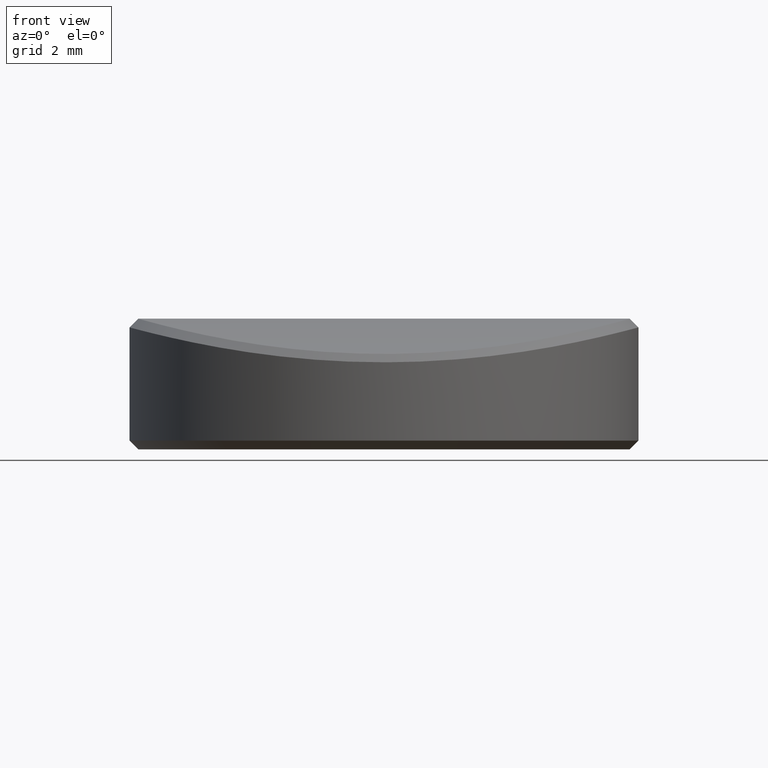
[diagram: clean part render]
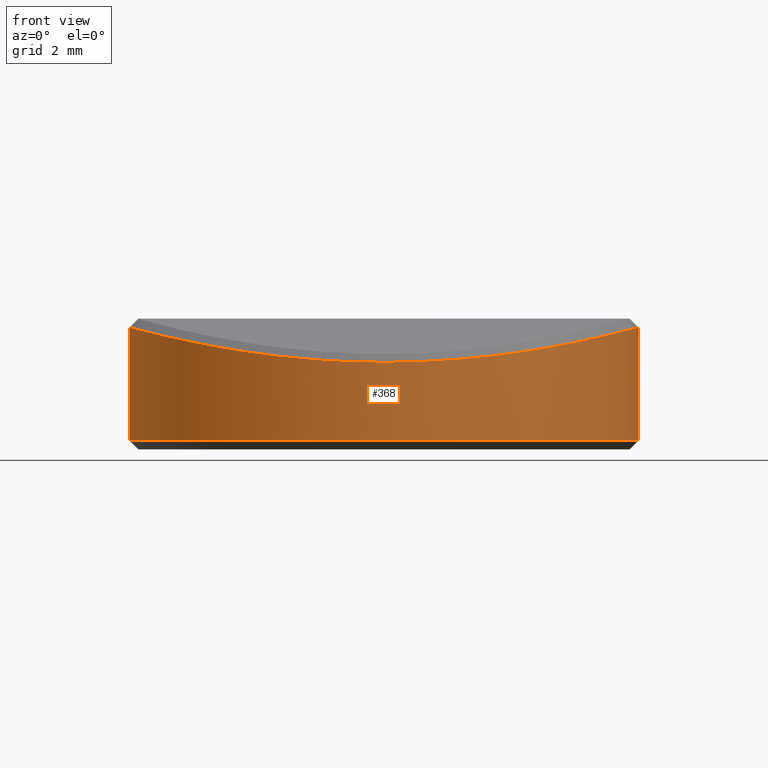
[diagram: same view with one face highlighted and labeled with its STEP entity id]
A machine part, front view. The second image highlights one B-rep face of the part: STEP entity #368.
In plain terms, the highlighted cylindrical surface (partial cylindrical patch) has radius 5.85 mm, axis along (-0, -0, -1).
Its self-contained STEP definition (entity closure, byte-faithful):
#9 = CARTESIAN_POINT ( 'NONE',  ( -3.108782850423519317, -4.956034727287149444, 2.230347185683114297 ) ) ;
#20 = CARTESIAN_POINT ( 'NONE',  ( -2.545663645051468027, -5.267292352795366561, 2.154873167774259635 ) ) ;
#23 = CARTESIAN_POINT ( 'NONE',  ( 4.723827799674229944, -3.450811663852322742, 2.527553060469594826 ) ) ;
#31 = CARTESIAN_POINT ( 'NONE',  ( -3.450554436345118159, -4.724016065476885018, 2.283396165273964940 ) ) ;
#33 = CARTESIAN_POINT ( 'NONE',  ( 5.754296932867942083, -1.054953600780712764, 2.777727176133279130 ) ) ;
#42 = CARTESIAN_POINT ( 'NONE',  ( -2.719600324991664930, -5.179423407595630025, 2.176656040645689405 ) ) ;
#45 = DIRECTION ( 'NONE',  ( -0.000000000000000000, -0.000000000000000000, -1.000000000000000000 ) ) ;
#54 = CARTESIAN_POINT ( 'NONE',  ( -3.925887252096214919, -4.337040503479961728, 2.365983545811698008 ) ) ;
#56 = CARTESIAN_POINT ( 'NONE',  ( 4.873037139303923126, -3.236690694926827927, 2.560910845699890359 ) ) ;
#57 = VECTOR ( 'NONE', #1112, 1000.000000000000000 ) ;
#67 = CARTESIAN_POINT ( 'NONE',  ( -5.392229212770919489, -2.268694357407081252, 2.684581383192929493 ) ) ;
#69 = CARTESIAN_POINT ( 'NONE',  ( 3.928645088535603236, -4.334541482554770120, 2.366492919366732117 ) ) ;
#78 = CARTESIAN_POINT ( 'NONE',  ( -5.718105006849672378, -1.238987986365718497, 2.768158322756777423 ) ) ;
#80 = CARTESIAN_POINT ( 'NONE',  ( 3.717813260694169397, -4.516679385691503512, 2.328564999075163122 ) ) ;
#90 = CARTESIAN_POINT ( 'NONE',  ( -5.135289014846268429, -2.802041077839218186, 2.621910768708905604 ) ) ;
#93 = CARTESIAN_POINT ( 'NONE',  ( 3.929106338797974995, -4.334124442365796526, 2.366577973504545795 ) ) ;
#103 = CARTESIAN_POINT ( 'NONE',  ( -5.146066280833688111, -2.782198645166380491, 2.624482193157535725 ) ) ;
#106 = CARTESIAN_POINT ( 'NONE',  ( 3.951386867900394950, -4.313828606339571436, 2.370705502691183408 ) ) ;
#112 = CARTESIAN_POINT ( 'NONE',  ( 5.849999999690336239, 1.250562986818305011E-13, 2.803286061411143670 ) ) ;
#115 = CARTESIAN_POINT ( 'NONE',  ( -4.507164106209422982, -3.729343330913357679, 2.480869325298382666 ) ) ;
#118 = CARTESIAN_POINT ( 'NONE',  ( 2.802417494788577823, -5.135083445294739590, 2.187506342453837238 ) ) ;
#125 = CARTESIAN_POINT ( 'NONE',  ( -5.755866007621095903, -1.049677379974378599, 2.778137771751524543 ) ) ;
#128 = CARTESIAN_POINT ( 'NONE',  ( 0.1883382758270276125, -5.850083910705085266, 2.000323871824096322 ) ) ;
#135 = CYLINDRICAL_SURFACE ( 'NONE', #862, 5.849999999999999645 ) ;
#179 = CARTESIAN_POINT ( 'NONE',  ( -3.526041746483487227, -4.668134007661689289, 2.295795990562802036 ) ) ;
#191 = CARTESIAN_POINT ( 'NONE',  ( -4.131726955247751576, -4.141423216994865264, 2.404929291311185935 ) ) ;
#193 = CARTESIAN_POINT ( 'NONE',  ( 5.066229355240967180, -2.926594406666112924, 2.605499175508384724 ) ) ;
#201 = CARTESIAN_POINT ( 'NONE',  ( -3.246887011883881513, -4.866246377772907472, 2.251174354118650633 ) ) ;
#211 = CARTESIAN_POINT ( 'NONE',  ( -2.686837148768024264, -5.196582156251404960, 2.172435946782888649 ) ) ;
#214 = CARTESIAN_POINT ( 'NONE',  ( 4.709326676162461922, -3.470575237268160862, 2.524363625867479755 ) ) ;
#215 = ORIENTED_EDGE ( 'NONE', *, *, #696, .T. ) ;
#223 = CARTESIAN_POINT ( 'NONE',  ( -3.913582356756851954, -4.348154723557182244, 2.363715322648005657 ) ) ;
#236 = CARTESIAN_POINT ( 'NONE',  ( -5.625266206309622596, -1.608843856409147399, 2.743873354517891272 ) ) ;
#239 = CARTESIAN_POINT ( 'NONE',  ( 4.745373247135765915, -3.421252046089266141, 2.532302280145746654 ) ) ;
#250 = CARTESIAN_POINT ( 'NONE',  ( 2.587057823179834681, -5.247748817499090279, 2.159787033227829500 ) ) ;
#261 = CARTESIAN_POINT ( 'NONE',  ( -4.401974534009122308, -3.853233005442497916, 2.458934406281215068 ) ) ;
#264 = CARTESIAN_POINT ( 'NONE',  ( 1.748415650869923343, -5.582822403530843580, 2.073360415807437906 ) ) ;
#274 = CARTESIAN_POINT ( 'NONE',  ( -4.851183327824674762, -3.269348508849334589, 2.555964011797020152 ) ) ;
#277 = CARTESIAN_POINT ( 'NONE',  ( 3.520711409013822735, -4.671960799779293794, 2.294937052677591183 ) ) ;
#286 = CARTESIAN_POINT ( 'NONE',  ( 3.168029712081033455, -4.918978468781044278, 2.239049897273139411 ) ) ;
#297 = CARTESIAN_POINT ( 'NONE',  ( 4.141705436161885245, -4.131448007787318133, 2.406865483849802700 ) ) ;
#306 = CARTESIAN_POINT ( 'NONE',  ( -0.6709341673489426228, -5.812172426493603439, 2.010909900656082883 ) ) ;
#328 = CARTESIAN_POINT ( 'NONE',  ( 5.849999970380407532, -0.0005886843151336670086, 2.803286054134136673 ) ) ;
#334 = CARTESIAN_POINT ( 'NONE',  ( -5.840532251854942736, -0.3847275646348179978, 2.800733105749589225 ) ) ;
#337 = CARTESIAN_POINT ( 'NONE',  ( 1.330873921045456543, -5.696798337782177590, 2.042665667443217536 ) ) ;
#352 = CARTESIAN_POINT ( 'NONE',  ( -0.9553637536794151730, -5.772259391865455669, 2.021977727394348445 ) ) ;
#363 = CARTESIAN_POINT ( 'NONE',  ( -4.123828730477953286, -4.149291052719297213, 2.403399490450074172 ) ) ;
#365 = CARTESIAN_POINT ( 'NONE',  ( 4.992499815448160128, -3.049545747813721785, 2.588307514210658411 ) ) ;
#368 = ADVANCED_FACE ( 'NONE', ( #2232 ), #135, .T. ) ;
#375 = CARTESIAN_POINT ( 'NONE',  ( 4.626183113562380989, -3.581187448371940363, 2.506222704104300369 ) ) ;
#386 = CARTESIAN_POINT ( 'NONE',  ( 5.410458597736353958, -2.224853044491496235, 2.689136660448355975 ) ) ;
#394 = CARTESIAN_POINT ( 'NONE',  ( -3.835304783193504097, -4.417408741672199213, 2.349446261839027716 ) ) ;
#396 = CARTESIAN_POINT ( 'NONE',  ( 4.668000088956494764, -3.526225386059664402, 2.515310402014607760 ) ) ;
#405 = CARTESIAN_POINT ( 'NONE',  ( -5.523515866622999759, -1.927587241727170664, 2.717700070206883645 ) ) ;
#408 = CARTESIAN_POINT ( 'NONE',  ( -5.849999999999999645, 0.000000000000000000, 6.000000000000000000 ) ) ;
#409 = VERTEX_POINT ( 'NONE', #2068 ) ;
#419 = CARTESIAN_POINT ( 'NONE',  ( 3.767888176357893304, -4.475084738857698419, 2.337379967339673126 ) ) ;
#425 = CARTESIAN_POINT ( 'NONE',  ( 5.849999995069331327, -0.0002942835053071968026, 2.803286060097897714 ) ) ;
#430 = CARTESIAN_POINT ( 'NONE',  ( 2.782705817194271347, -5.145791886599218046, 2.184894637057706479 ) ) ;
#439 = CARTESIAN_POINT ( 'NONE',  ( -4.215397123777505861, -4.056499576705031807, 2.421280389290585422 ) ) ;
#442 = CARTESIAN_POINT ( 'NONE',  ( 3.318472046064632863, -4.817797987164772699, 2.262270070581624104 ) ) ;
#449 = CARTESIAN_POINT ( 'NONE',  ( -5.365646248567822241, -2.330853210793601527, 2.677963900499593208 ) ) ;
#452 = CARTESIAN_POINT ( 'NONE',  ( 4.230524273277861624, -4.040511658897979252, 2.424292820571617213 ) ) ;
#463 = CARTESIAN_POINT ( 'NONE',  ( 4.170698614172545504, -4.102209374233271255, 2.412514241117049263 ) ) ;
#496 = CARTESIAN_POINT ( 'NONE',  ( 1.608883154003948990, -5.625250937251918160, 2.062027522259896717 ) ) ;
#506 = CARTESIAN_POINT ( 'NONE',  ( -0.4821109451466245033, -5.830872148210644035, 2.005698919982746631 ) ) ;
#526 = CARTESIAN_POINT ( 'NONE',  ( -3.580772384372483241, -4.626506958682261583, 2.304941799791994761 ) ) ;
#527 = CARTESIAN_POINT ( 'NONE',  ( 4.462856918700680353, -3.782547936313775949, 2.471557332582889011 ) ) ;
#536 = CARTESIAN_POINT ( 'NONE',  ( -2.331074964047352704, -5.366276372743954859, 2.129868160483276984 ) ) ;
#539 = CARTESIAN_POINT ( 'NONE',  ( 5.648914043461314982, -1.521381223205688693, 2.750033706340389017 ) ) ;
#550 = CARTESIAN_POINT ( 'NONE',  ( 5.849980663223728783, -0.1924519004817172585, 2.803281299603395116 ) ) ;
#559 = CARTESIAN_POINT ( 'NONE',  ( -2.753480425301402246, -5.161489221516933235, 2.181056120618038108 ) ) ;
#562 = CARTESIAN_POINT ( 'NONE',  ( 5.464986142956941073, -2.088186325386706343, 2.702835531236337907 ) ) ;
#572 = CARTESIAN_POINT ( 'NONE',  ( -3.182289788212739889, -4.908833012880132074, 2.241338763175429349 ) ) ;
#575 = VERTEX_POINT ( 'NONE', #1173 ) ;
#577 = LINE ( 'NONE', #1971, #57 ) ;
#581 = CARTESIAN_POINT ( 'NONE',  ( 5.849999980247618581, -0.0004906297894992470328, 2.803286056564010309 ) ) ;
#584 = CARTESIAN_POINT ( 'NONE',  ( -5.697698379113311340, -1.329634167561340341, 2.762784995634119944 ) ) ;
#587 = CARTESIAN_POINT ( 'NONE',  ( 2.832065877740156612, -5.118866719266185861, 2.191455161635542215 ) ) ;
#588 = EDGE_LOOP ( 'NONE', ( #1719, #215, #757, #1551, #1444 ) ) ;
#598 = CARTESIAN_POINT ( 'NONE',  ( -4.516843897697922827, -3.717615432673370801, 2.482910527837084658 ) ) ;
#601 = CARTESIAN_POINT ( 'NONE',  ( 3.262756936585985201, -4.855623287246449316, 2.253616069431632507 ) ) ;
#614 = CARTESIAN_POINT ( 'NONE',  ( 3.502717940038178046, -4.685466206555029878, 2.291955575945423096 ) ) ;
#623 = CARTESIAN_POINT ( 'NONE',  ( -4.264442010017353901, -4.004697213890091589, 2.431044420742443979 ) ) ;
#626 = CARTESIAN_POINT ( 'NONE',  ( 3.985749616642158433, -4.282157780973173011, 2.377110817988512981 ) ) ;
#635 = CARTESIAN_POINT ( 'NONE',  ( -4.311405481084928937, -3.954042083302847566, 2.440483853749306764 ) ) ;
#637 = CARTESIAN_POINT ( 'NONE',  ( 2.901799621491691017, -5.079935752348535338, 2.200887900672091835 ) ) ;
#664 = CARTESIAN_POINT ( 'NONE',  ( 1.051314444382481339, -5.755578168303820519, 2.026578894039628320 ) ) ;
#675 = CARTESIAN_POINT ( 'NONE',  ( 0.6725881811022945689, -5.812015075091156113, 2.010954348993247542 ) ) ;
#696 = EDGE_CURVE ( 'NONE', #575, #2074, #1742, .T. ) ;
#697 = CARTESIAN_POINT ( 'NONE',  ( -4.075196796774990915, -4.197082868610893414, 2.394043725910964149 ) ) ;
#699 = CARTESIAN_POINT ( 'NONE',  ( 4.794219617934716737, -3.352898638251528673, 2.543139267134282733 ) ) ;
#709 = CARTESIAN_POINT ( 'NONE',  ( 5.159837667453142984, -2.756574299140861939, 2.627775092831204251 ) ) ;
#720 = CARTESIAN_POINT ( 'NONE',  ( 5.771024310370168386, -0.9592386045870681111, 2.782165219909945808 ) ) ;
#729 = CARTESIAN_POINT ( 'NONE',  ( -3.213964614722030877, -4.888056069703377915, 2.246144947486201637 ) ) ;
#732 = CARTESIAN_POINT ( 'NONE',  ( 5.840355360950090002, -0.3865547633293929808, 2.800684777922156865 ) ) ;
#740 = CARTESIAN_POINT ( 'NONE',  ( -3.929909371101209192, -4.333395194116024030, 2.366726321089279939 ) ) ;
#743 = CARTESIAN_POINT ( 'NONE',  ( 4.535097732049801600, -3.695340623209366182, 2.486770112394149024 ) ) ;
#753 = CARTESIAN_POINT ( 'NONE',  ( -4.587836664488898819, -3.631162335127839480, 2.497909758033231675 ) ) ;
#756 = CARTESIAN_POINT ( 'NONE',  ( 3.738363006948426381, -4.499704974975393235, 2.332170820305339731 ) ) ;
#757 = ORIENTED_EDGE ( 'NONE', *, *, #1169, .T. ) ;
#766 = CARTESIAN_POINT ( 'NONE',  ( -4.287366684347072798, -3.980168403955294476, 2.435635814919612230 ) ) ;
#769 = CARTESIAN_POINT ( 'NONE',  ( 2.060728665083190414, -5.475861335615817893, 2.101582767041390021 ) ) ;
#779 = CARTESIAN_POINT ( 'NONE',  ( -4.856243827789320733, -3.261832886638504903, 2.557107594304171894 ) ) ;
#782 = CARTESIAN_POINT ( 'NONE',  ( 4.145504877088814766, -4.127631441792280143, 2.407604373877286097 ) ) ;
#792 = CARTESIAN_POINT ( 'NONE',  ( -5.247042623508423098, -2.588460887973440538, 2.648779003261308329 ) ) ;
#795 = CARTESIAN_POINT ( 'NONE',  ( 3.886739420570450410, -4.372487892644587149, 2.358757605636345289 ) ) ;
#804 = CARTESIAN_POINT ( 'NONE',  ( -5.474781948227675166, -2.063623762361217917, 2.705300481706175209 ) ) ;
#807 = CARTESIAN_POINT ( 'NONE',  ( 2.774113141161162588, -5.150432320729213309, 2.183761277853273786 ) ) ;
#813 = DIRECTION ( 'NONE',  ( -0.000000000000000000, -0.000000000000000000, 1.000000000000000000 ) ) ;
#815 = CARTESIAN_POINT ( 'NONE',  ( -1.684708547325874939, -5.602213537842637869, 2.068181486432794092 ) ) ;
#822 = CARTESIAN_POINT ( 'NONE',  ( -5.800448533297479337, -0.7657957513932394100, 2.789999254707520748 ) ) ;
#852 = CARTESIAN_POINT ( 'NONE',  ( 1.469557104900936828, -5.663816091009390874, 2.051638609363329202 ) ) ;
#862 = AXIS2_PLACEMENT_3D ( 'NONE', #1515, #1001, #2202 ) ;
#866 = CARTESIAN_POINT ( 'NONE',  ( -3.681149238050337225, -4.546637899576992048, 2.322172438114938231 ) ) ;
#877 = CARTESIAN_POINT ( 'NONE',  ( -4.178442958326396450, -4.094699466755609585, 2.413996044192650015 ) ) ;
#879 = B_SPLINE_CURVE_WITH_KNOTS ( 'NONE', 3,
 ( #1738, #550, #732, #1249, #1431, #720, #33, #1420, #2103, #1935, #539, #1763, #2113, #1269, #1956, #1224, #562, #1059, #1257, #386, #1096, #1407, #1910, #1945, #1785, #1083, #1072, #709, #2090, #193, #365, #1604, #1616, #881, #56, #1570, #1236, #699, #239, #23, #214, #1396, #396, #375, #924, #1773, #743, #2125, #2082, #527, #1923, #2004, #1796, #1155, #1820, #1844, #2152, #949, #452, #1135, #463, #1640, #782, #297, #1318, #2016, #626, #1146, #106, #2176, #1833, #983, #69, #93, #795, #1122, #973, #419, #756, #1808, #80, #1480, #1455, #1109, #2165, #277, #614, #960, #1304, #1991, #442, #1650, #1492, #601, #286, #1664, #2187, #637, #587, #118, #430, #807, #1330, #250, #1502, #2140, #1281, #1969, #937, #1628, #769, #1467, #1293, #1980, #264, #496, #852, #337, #993, #1517, #664, #1853, #1875, #675, #1210, #128, #2059, #1349, #1547, #506, #306, #1338, #352, #1682, #2036, #1674, #1196, #1002, #1175, #815, #1864, #2195, #1693, #1748, #1233, #1726, #1589, #536, #1069, #20, #1760, #211, #42, #1246, #559, #1404, #1267, #1921, #9, #572, #729, #888, #201, #1254, #1577, #909, #31, #1417, #2081, #179, #526, #2100, #866, #1933, #1428, #2110, #1736, #1943, #394, #1080, #1771, #223, #1601, #54, #740, #1440, #2123, #1954, #1035, #697, #1222, #1908, #363, #191, #877, #439, #623, #766, #635, #1290, #1614, #1660, #934, #261, #1978, #1314, #1465, #115, #2149, #598, #753, #1093, #2136, #947, #1782, #1638, #274, #779, #1794, #1649, #1478, #958, #2162, #90, #103, #1627, #2001, #792, #1490, #1326, #449, #1144, #67, #1831, #804, #405, #1966, #1500, #2185, #236, #922, #584, #78, #125, #2012, #822, #2023, #334, #1883, #1346 ),
 .UNSPECIFIED., .F., .F.,
 ( 4, 2, 1, 2, 2, 1, 2, 2, 2, 1, 2, 2, 2, 1, 1, 2, 2, 2, 1, 1, 2, 2, 1, 1, 2, 2, 1, 1, 2, 2, 2, 1, 1, 2, 2, 2, 1, 1, 2, 2, 2, 2, 1, 1, 2, 2, 2, 1, 1, 2, 2, 1, 1, 2, 2, 1, 1, 2, 2, 2, 1, 1, 2, 2, 2, 1, 2, 2, 2, 2, 2, 1, 2, 2, 2, 2, 2, 2, 2, 2, 2, 1, 1, 2, 2, 2, 1, 2, 2, 2, 1, 1, 2, 2, 2, 1, 1, 2, 2, 1, 1, 2, 2, 1, 1, 1, 2, 2, 2, 1, 1, 1, 2, 2, 2, 2, 1, 2, 2, 2, 1, 1, 2, 2, 2, 1, 1, 2, 2, 2, 1, 1, 2, 2, 2, 1, 1, 2, 2, 2, 1, 2, 2, 2, 2, 2, 2, 2, 2, 2, 4 ),
 ( 0.5000000000000000000, 0.5156249999999993339, 0.5234374999999991118, 0.5273437499999988898, 0.5312499999999986677, 0.5390624999999983347, 0.5429687499999982236, 0.5468749999999980016, 0.5546874999999975575, 0.5585937499999973355, 0.5605468749999972244, 0.5624999999999971134, 0.5703124999999966693, 0.5742187499999964473, 0.5761718749999962252, 0.5771484374999962252, 0.5781249999999961142, 0.5859374999999954481, 0.5898437499999951150, 0.5917968749999948930, 0.5927734374999948930, 0.5937499999999948930, 0.5976562499999944489, 0.5996093749999942268, 0.6005859374999942268, 0.6015624999999941158, 0.6054687499999937828, 0.6074218749999935607, 0.6083984374999935607, 0.6093749999999934497, 0.6132812499999931166, 0.6152343749999928946, 0.6162109374999928946, 0.6166992187499927836, 0.6171874999999926725, 0.6210937499999917843, 0.6230468749999913403, 0.6240234374999911182, 0.6245117187499910072, 0.6249999999999908962, 0.6289062499999897859, 0.6308593749999892308, 0.6318359374999888978, 0.6323242187499887867, 0.6325683593749887867, 0.6328124999999886757, 0.6367187499999882316, 0.6386718749999880096, 0.6396484374999878986, 0.6401367187499878986, 0.6406249999999878986, 0.6445312499999877875, 0.6464843749999877875, 0.6474609374999877875, 0.6484374999999878986, 0.6523437499999878986, 0.6542968749999878986, 0.6552734374999878986, 0.6562499999999878986, 0.6640624999999880096, 0.6679687499999881206, 0.6699218749999882316, 0.6708984374999882316, 0.6718749999999882316, 0.6796874999999888978, 0.6835937499999892308, 0.6855468749999893419, 0.6874999999999894529, 0.6953124999999898970, 0.6992187499999901190, 0.7031249999999903411, 0.7109374999999907851, 0.7148437499999910072, 0.7187499999999912292, 0.7265624999999916733, 0.7343749999999921174, 0.7499999999999930056, 0.7578124999999934497, 0.7656249999999940048, 0.7734374999999944489, 0.7812499999999948930, 0.7890624999999953371, 0.7929687499999955591, 0.7949218749999956701, 0.7968749999999957812, 0.8046874999999964473, 0.8085937499999966693, 0.8105468749999967804, 0.8124999999999968914, 0.8203124999999972244, 0.8242187499999973355, 0.8261718749999975575, 0.8271484374999975575, 0.8281249999999975575, 0.8359374999999977796, 0.8398437499999980016, 0.8417968749999981126, 0.8427734374999981126, 0.8437499999999982236, 0.8476562499999982236, 0.8496093749999982236, 0.8505859374999983347, 0.8515624999999983347, 0.8554687499999985567, 0.8574218749999986677, 0.8583984374999987788, 0.8588867187499988898, 0.8593749999999988898, 0.8632812499999995559, 0.8652343749999997780, 0.8662109375000000000, 0.8666992187500001110, 0.8669433593750002220, 0.8671875000000002220, 0.8710937500000004441, 0.8730468750000006661, 0.8740234375000006661, 0.8745117187500006661, 0.8750000000000007772, 0.8789062500000008882, 0.8808593750000011102, 0.8818359375000011102, 0.8823242187500012212, 0.8828125000000012212, 0.8867187500000011102, 0.8886718750000011102, 0.8896484375000011102, 0.8901367187500011102, 0.8906250000000011102, 0.8984375000000011102, 0.9023437500000009992, 0.9042968750000009992, 0.9052734375000008882, 0.9062500000000008882, 0.9140625000000006661, 0.9179687500000004441, 0.9199218750000004441, 0.9208984375000004441, 0.9218750000000003331, 0.9296875000000003331, 0.9335937500000003331, 0.9355468750000003331, 0.9375000000000002220, 0.9453125000000002220, 0.9492187500000002220, 0.9531250000000002220, 0.9609375000000002220, 0.9687500000000002220, 0.9765625000000002220, 0.9843750000000001110, 1.000000000000000000 ),
 .UNSPECIFIED. ) ;
#881 = CARTESIAN_POINT ( 'NONE',  ( 4.886884516366516884, -3.215745223017282495, 2.564055979376614225 ) ) ;
#888 = CARTESIAN_POINT ( 'NONE',  ( -3.235117863399462834, -4.874081769437506928, 2.249370294413969518 ) ) ;
#909 = CARTESIAN_POINT ( 'NONE',  ( -3.420675677818139970, -4.745790959252362384, 2.278536474692071323 ) ) ;
#919 = CARTESIAN_POINT ( 'NONE',  ( 5.849999970380407532, -0.0005886843151336670086, 2.803286054134136673 ) ) ;
#922 = CARTESIAN_POINT ( 'NONE',  ( -5.651062770848222172, -1.515646198434911440, 2.750585363821625773 ) ) ;
#924 = CARTESIAN_POINT ( 'NONE',  ( 4.573899886724047015, -3.647326372056396426, 2.495017668219871698 ) ) ;
#934 = CARTESIAN_POINT ( 'NONE',  ( -4.368851757399438540, -3.890806779127899517, 2.452131659923169060 ) ) ;
#936 = VECTOR ( 'NONE', #45, 1000.000000000000000 ) ;
#937 = CARTESIAN_POINT ( 'NONE',  ( 2.264965543652107449, -5.393796115668309632, 2.122794136949435195 ) ) ;
#947 = CARTESIAN_POINT ( 'NONE',  ( -4.775614242919658636, -3.379290012522528031, 2.538989154525829406 ) ) ;
#949 = CARTESIAN_POINT ( 'NONE',  ( 4.279785733408155046, -3.988510304117412364, 2.434097428140244102 ) ) ;
#958 = CARTESIAN_POINT ( 'NONE',  ( -5.079871552516094013, -2.901916809380888918, 2.608748214049255054 ) ) ;
#960 = CARTESIAN_POINT ( 'NONE',  ( 3.494910572114405145, -4.691295642166607216, 2.290666101088195461 ) ) ;
#973 = CARTESIAN_POINT ( 'NONE',  ( 3.794317774654890396, -4.452664604806925830, 2.342088475857971641 ) ) ;
#983 = CARTESIAN_POINT ( 'NONE',  ( 3.930789857785287555, -4.332596587451381431, 2.366889188795622267 ) ) ;
#993 = CARTESIAN_POINT ( 'NONE',  ( 1.238595651085522054, -5.717570944744692518, 2.036998366380133429 ) ) ;
#1001 = DIRECTION ( 'NONE',  ( -0.000000000000000000, -0.000000000000000000, -1.000000000000000000 ) ) ;
#1002 = CARTESIAN_POINT ( 'NONE',  ( -1.612887412925917197, -5.623316934798353373, 2.062528423804320443 ) ) ;
#1035 = CARTESIAN_POINT ( 'NONE',  ( -4.042221454208731579, -4.228933656238111460, 2.387753917121563596 ) ) ;
#1040 = VERTEX_POINT ( 'NONE', #1443 ) ;
#1059 = CARTESIAN_POINT ( 'NONE',  ( 5.438325556584006293, -2.155854024878964825, 2.696126727589092553 ) ) ;
#1069 = CARTESIAN_POINT ( 'NONE',  ( -2.416408798492225785, -5.328466666197920532, 2.139499324668487024 ) ) ;
#1072 = CARTESIAN_POINT ( 'NONE',  ( 5.166255072651036784, -2.744533188422785486, 2.629312144531366524 ) ) ;
#1080 = CARTESIAN_POINT ( 'NONE',  ( -3.862996202178032856, -4.393277256363782968, 2.354453143332099430 ) ) ;
#1083 = CARTESIAN_POINT ( 'NONE',  ( 5.177848721285169376, -2.722597384398258047, 2.632093626499733663 ) ) ;
#1093 = CARTESIAN_POINT ( 'NONE',  ( -4.649429772824715812, -3.551685533534181705, 2.511209556867897152 ) ) ;
#1096 = CARTESIAN_POINT ( 'NONE',  ( 5.366123589258839033, -2.331469610189443209, 2.678058251146858026 ) ) ;
#1100 = EDGE_CURVE ( 'NONE', #1040, #409, #1592, .T. ) ;
#1109 = CARTESIAN_POINT ( 'NONE',  ( 3.612662142227298645, -4.601639023062106482, 2.310350403128226926 ) ) ;
#1112 = DIRECTION ( 'NONE',  ( -0.000000000000000000, -0.000000000000000000, -1.000000000000000000 ) ) ;
#1122 = CARTESIAN_POINT ( 'NONE',  ( 3.848617384839337685, -4.406009765872322070, 2.351830193355915366 ) ) ;
#1135 = CARTESIAN_POINT ( 'NONE',  ( 4.204270168794293383, -4.067908293509399975, 2.419095132637035572 ) ) ;
#1144 = CARTESIAN_POINT ( 'NONE',  ( -5.383932825262865762, -2.288297115344458899, 2.682512954289103302 ) ) ;
#1146 = CARTESIAN_POINT ( 'NONE',  ( 3.970573250912854402, -4.296201782725362683, 2.374276027198873873 ) ) ;
#1155 = CARTESIAN_POINT ( 'NONE',  ( 4.350118121491790113, -3.911395391327506577, 2.448335852453417782 ) ) ;
#1169 = EDGE_CURVE ( 'NONE', #2074, #1040, #879, .T. ) ;
#1173 = CARTESIAN_POINT ( 'NONE',  ( 5.849999999690336239, 1.250562986818305011E-13, 2.803286061411143670 ) ) ;
#1175 = CARTESIAN_POINT ( 'NONE',  ( -1.659888457672171080, -5.609622934213271073, 2.066199278663894301 ) ) ;
#1195 = EDGE_CURVE ( 'NONE', #409, #1902, #2129, .T. ) ;
#1196 = CARTESIAN_POINT ( 'NONE',  ( -1.542421963546087849, -5.643367362346973337, 2.057142972757380672 ) ) ;
#1210 = CARTESIAN_POINT ( 'NONE',  ( 0.3832323308930051797, -5.840651449824732389, 2.002972556573604290 ) ) ;
#1222 = CARTESIAN_POINT ( 'NONE',  ( -4.092545150373138263, -4.180201653597415579, 2.397364876272919609 ) ) ;
#1224 = CARTESIAN_POINT ( 'NONE',  ( 5.490141327174113073, -2.020674518555805044, 2.709209178134673213 ) ) ;
#1233 = CARTESIAN_POINT ( 'NONE',  ( -2.156035917626330178, -5.438253944256175920, 2.111331937365048539 ) ) ;
#1236 = CARTESIAN_POINT ( 'NONE',  ( 4.833702247180559297, -3.295434569614190679, 2.552008926400196831 ) ) ;
#1246 = CARTESIAN_POINT ( 'NONE',  ( -2.741461847941738750, -5.167885418536691589, 2.179488751071473551 ) ) ;
#1249 = CARTESIAN_POINT ( 'NONE',  ( 5.812015679223195619, -0.6724154789053393699, 2.793094438108241651 ) ) ;
#1254 = CARTESIAN_POINT ( 'NONE',  ( -3.294078982429127223, -4.834626034303987296, 2.258439970638477234 ) ) ;
#1257 = CARTESIAN_POINT ( 'NONE',  ( 5.420213385988533084, -2.200994840142132425, 2.691579712546726899 ) ) ;
#1267 = CARTESIAN_POINT ( 'NONE',  ( -2.923104580483388393, -5.068249794812365927, 2.203738605480023871 ) ) ;
#1269 = CARTESIAN_POINT ( 'NONE',  ( 5.568114771315498146, -1.796453700236005258, 2.729114040800145080 ) ) ;
#1281 = CARTESIAN_POINT ( 'NONE',  ( 2.327559513434120486, -5.367076281573001317, 2.129636093917917528 ) ) ;
#1288 = CARTESIAN_POINT ( 'NONE',  ( 5.849999999999997868, -9.811434387812614549E-05, 2.803286060963928961 ) ) ;
#1290 = CARTESIAN_POINT ( 'NONE',  ( -4.321136475902579654, -3.943387105034600548, 2.442452601595534567 ) ) ;
#1293 = CARTESIAN_POINT ( 'NONE',  ( 1.880621991236417490, -5.539673853719833119, 2.084808949375617892 ) ) ;
#1304 = CARTESIAN_POINT ( 'NONE',  ( 3.444958841985744868, -4.728343676768757220, 2.282450914353714833 ) ) ;
#1314 = CARTESIAN_POINT ( 'NONE',  ( -4.471415384972158513, -3.772246481102694116, 2.473358377005175690 ) ) ;
#1318 = CARTESIAN_POINT ( 'NONE',  ( 4.082475564823258019, -4.190636367607246449, 2.395374741997335022 ) ) ;
#1326 = CARTESIAN_POINT ( 'NONE',  ( -5.337704896130827770, -2.394832628737228131, 2.671029109550548952 ) ) ;
#1330 = CARTESIAN_POINT ( 'NONE',  ( 2.674774968185193114, -5.203663587664128620, 2.170737511915600049 ) ) ;
#1338 = CARTESIAN_POINT ( 'NONE',  ( -0.7656337657616251180, -5.800474405214547602, 2.014165662138402535 ) ) ;
#1346 = CARTESIAN_POINT ( 'NONE',  ( -5.849999999999999645, 0.000000000000000000, 2.803286062104025422 ) ) ;
#1349 = CARTESIAN_POINT ( 'NONE',  ( -0.1936888121421473929, -5.847577666125734375, 2.001027612203237549 ) ) ;
#1396 = CARTESIAN_POINT ( 'NONE',  ( 4.701273090037131119, -3.481473212144476026, 2.522596473294274499 ) ) ;
#1404 = CARTESIAN_POINT ( 'NONE',  ( -2.842324405192669268, -5.113875233349853389, 2.192704934513865833 ) ) ;
#1407 = CARTESIAN_POINT ( 'NONE',  ( 5.327931406378881185, -2.417616649014851848, 2.668592003590387840 ) ) ;
#1417 = CARTESIAN_POINT ( 'NONE',  ( -3.470546371445371925, -4.709348318898491037, 2.286661616465484048 ) ) ;
#1420 = CARTESIAN_POINT ( 'NONE',  ( 5.744972717587119249, -1.104537890738262584, 2.775258254364893595 ) ) ;
#1428 = CARTESIAN_POINT ( 'NONE',  ( -3.705597340394993555, -4.526708335164444819, 2.326429197138628613 ) ) ;
#1431 = CARTESIAN_POINT ( 'NONE',  ( 5.794266203525281433, -0.8157010895295693231, 2.788345302948604054 ) ) ;
#1440 = CARTESIAN_POINT ( 'NONE',  ( -3.945702359224861233, -4.319066530790381719, 2.369644520654216269 ) ) ;
#1443 = CARTESIAN_POINT ( 'NONE',  ( -5.849999999999999645, 0.000000000000000000, 2.803286062104025422 ) ) ;
#1444 = ORIENTED_EDGE ( 'NONE', *, *, #1195, .T. ) ;
#1455 = CARTESIAN_POINT ( 'NONE',  ( 3.670371298368212187, -4.555597142766338870, 2.320274123885624373 ) ) ;
#1465 = CARTESIAN_POINT ( 'NONE',  ( -4.496621701542495408, -3.742072646855841178, 2.478649123632231444 ) ) ;
#1467 = CARTESIAN_POINT ( 'NONE',  ( 1.925557208234224937, -5.524221161151510628, 2.088886329823430366 ) ) ;
#1478 = CARTESIAN_POINT ( 'NONE',  ( -5.044528596456152592, -2.962683148563599822, 2.600442781187571217 ) ) ;
#1480 = CARTESIAN_POINT ( 'NONE',  ( 3.714647509045966078, -4.519284718261454614, 2.328010701621941347 ) ) ;
#1490 = CARTESIAN_POINT ( 'NONE',  ( -5.308201946599024446, -2.459220122212107729, 2.663760687807173788 ) ) ;
#1492 = CARTESIAN_POINT ( 'NONE',  ( 3.271034204674051260, -4.850048026322730799, 2.254894979553702328 ) ) ;
#1500 = CARTESIAN_POINT ( 'NONE',  ( -5.568965163491331083, -1.792034696216567857, 2.729342617363954560 ) ) ;
#1502 = CARTESIAN_POINT ( 'NONE',  ( 2.456731449904086872, -5.309357733385643208, 2.144300618414747284 ) ) ;
#1515 = CARTESIAN_POINT ( 'NONE',  ( 0.000000000000000000, 0.000000000000000000, 6.000000000000000000 ) ) ;
#1517 = CARTESIAN_POINT ( 'NONE',  ( 1.194243147486918843, -5.727010025553145312, 2.034415136443989525 ) ) ;
#1547 = CARTESIAN_POINT ( 'NONE',  ( -0.3850779861820564087, -5.838098565618732749, 2.003680052600770534 ) ) ;
#1551 = ORIENTED_EDGE ( 'NONE', *, *, #1100, .T. ) ;
#1570 = CARTESIAN_POINT ( 'NONE',  ( 4.865344775827885826, -3.248237885898632715, 2.559167427608312284 ) ) ;
#1577 = CARTESIAN_POINT ( 'NONE',  ( -3.351744135390885226, -4.795032730926969577, 2.267466600105343399 ) ) ;
#1589 = CARTESIAN_POINT ( 'NONE',  ( -2.225722315740258583, -5.410099903006249100, 2.118601785941731208 ) ) ;
#1592 = LINE ( 'NONE', #408, #936 ) ;
#1601 = CARTESIAN_POINT ( 'NONE',  ( -3.920956949766256638, -4.341498317755862146, 2.365074215171922845 ) ) ;
#1604 = CARTESIAN_POINT ( 'NONE',  ( 4.954346080439928635, -3.111463278577415448, 2.579471806309992399 ) ) ;
#1614 = CARTESIAN_POINT ( 'NONE',  ( -4.327497773191304908, -3.936405127340578680, 2.443740881697288980 ) ) ;
#1616 = CARTESIAN_POINT ( 'NONE',  ( 4.907482645325659476, -3.184368750351600053, 2.568743695235226276 ) ) ;
#1627 = CARTESIAN_POINT ( 'NONE',  ( -5.150859454290174888, -2.773319258550233535, 2.625627305565186198 ) ) ;
#1628 = CARTESIAN_POINT ( 'NONE',  ( 2.151331884045235121, -5.440951970562511342, 2.110666119686059439 ) ) ;
#1638 = CARTESIAN_POINT ( 'NONE',  ( -4.838938537610581569, -3.287444780023934143, 2.553200834634085314 ) ) ;
#1640 = CARTESIAN_POINT ( 'NONE',  ( 4.155668766068727038, -4.117398342638246334, 2.409583089980704251 ) ) ;
#1649 = CARTESIAN_POINT ( 'NONE',  ( -4.971302891205302998, -3.085075098094076651, 2.583358987851570809 ) ) ;
#1650 = CARTESIAN_POINT ( 'NONE',  ( 3.289960270438879952, -4.837229790357119086, 2.257829969474603793 ) ) ;
#1660 = CARTESIAN_POINT ( 'NONE',  ( -4.329272821285285566, -3.934455451439153428, 2.444100480878233839 ) ) ;
#1664 = CARTESIAN_POINT ( 'NONE',  ( 3.084933597597542043, -4.971391576917191024, 2.226769091888026963 ) ) ;
#1674 = CARTESIAN_POINT ( 'NONE',  ( -1.378306468620035252, -5.686750124713081611, 2.045422739011475866 ) ) ;
#1682 = CARTESIAN_POINT ( 'NONE',  ( -1.052592172961929862, -5.755303476507283911, 2.026654412893317492 ) ) ;
#1691 = DIRECTION ( 'NONE',  ( 1.000000000000000000, 0.000000000000000000, 0.000000000000000000 ) ) ;
#1693 = CARTESIAN_POINT ( 'NONE',  ( -2.020369021272554466, -5.490254685334663876, 2.097802533459184993 ) ) ;
#1711 = CARTESIAN_POINT ( 'NONE',  ( 0.000000000000000000, 0.000000000000000000, 0.2000000000000013989 ) ) ;
#1719 = ORIENTED_EDGE ( 'NONE', *, *, #1860, .F. ) ;
#1726 = CARTESIAN_POINT ( 'NONE',  ( -2.201381551395129144, -5.420056836001802658, 2.116035400544342693 ) ) ;
#1736 = CARTESIAN_POINT ( 'NONE',  ( -3.747364754207416659, -4.492378653603804395, 2.333736516525200866 ) ) ;
#1738 = CARTESIAN_POINT ( 'NONE',  ( 5.849999970380407532, -0.0005886843151336670086, 2.803286054134136673 ) ) ;
#1742 = B_SPLINE_CURVE_WITH_KNOTS ( 'NONE', 3,
 ( #112, #1288, #425, #581, #919 ),
 .UNSPECIFIED., .F., .F.,
 ( 4, 1, 4 ),
 ( 0.4999840292267206943, 0.4999920146133603471, 0.5000000000000000000 ),
 .UNSPECIFIED. ) ;
#1748 = CARTESIAN_POINT ( 'NONE',  ( -2.088086111907052178, -5.465027362141150036, 2.104392939722510736 ) ) ;
#1760 = CARTESIAN_POINT ( 'NONE',  ( -2.610603928216473246, -5.235590353639483219, 2.162791863534135217 ) ) ;
#1763 = CARTESIAN_POINT ( 'NONE',  ( 5.623035893129284979, -1.614403308134934045, 2.743307436320910675 ) ) ;
#1771 = CARTESIAN_POINT ( 'NONE',  ( -3.896521926597833474, -4.363475008440131475, 2.360580297475749045 ) ) ;
#1773 = CARTESIAN_POINT ( 'NONE',  ( 4.550722667185637782, -3.676081741086219878, 2.490086355343173352 ) ) ;
#1782 = CARTESIAN_POINT ( 'NONE',  ( -4.820370010758928458, -3.314722911621555745, 2.549017766216108871 ) ) ;
#1785 = CARTESIAN_POINT ( 'NONE',  ( 5.195094399319026834, -2.689714290213203629, 2.636237559446881207 ) ) ;
#1794 = CARTESIAN_POINT ( 'NONE',  ( -4.919098835160360395, -3.167818168553839353, 2.571339222144063630 ) ) ;
#1796 = CARTESIAN_POINT ( 'NONE',  ( 4.362971723315268946, -3.897083936963755768, 2.450954630549339708 ) ) ;
#1808 = CARTESIAN_POINT ( 'NONE',  ( 3.725994785846071800, -4.509932479580140097, 2.329999210055700321 ) ) ;
#1820 = CARTESIAN_POINT ( 'NONE',  ( 4.341484949723134257, -3.920975645111409946, 2.446579433733488518 ) ) ;
#1831 = CARTESIAN_POINT ( 'NONE',  ( -5.439637784840892998, -2.154669416867597054, 2.696428456297459864 ) ) ;
#1833 = CARTESIAN_POINT ( 'NONE',  ( 3.934120781871022210, -4.329573898075338434, 2.367504894866356846 ) ) ;
#1844 = CARTESIAN_POINT ( 'NONE',  ( 4.335812098528643688, -3.927245108594570322, 2.445427292893460613 ) ) ;
#1853 = CARTESIAN_POINT ( 'NONE',  ( 0.9560468644888537870, -5.772150588240373636, 2.022007704561298524 ) ) ;
#1860 = EDGE_CURVE ( 'NONE', #575, #1902, #577, .T. ) ;
#1864 = CARTESIAN_POINT ( 'NONE',  ( -1.795781635780963503, -5.568329994254566984, 2.077228878098276166 ) ) ;
#1875 = CARTESIAN_POINT ( 'NONE',  ( 0.7658077995798241444, -5.800455709211593813, 2.014171269853797686 ) ) ;
#1883 = CARTESIAN_POINT ( 'NONE',  ( -5.849999999999998757, -0.1920781844364734536, 2.803285814133700260 ) ) ;
#1902 = VERTEX_POINT ( 'NONE', #2049 ) ;
#1908 = CARTESIAN_POINT ( 'NONE',  ( -4.111150271376299514, -4.161853323298935869, 2.400950395585759622 ) ) ;
#1910 = CARTESIAN_POINT ( 'NONE',  ( 5.266259891464798670, -2.547805445617313147, 2.653487352082772421 ) ) ;
#1921 = CARTESIAN_POINT ( 'NONE',  ( -3.046517147574602458, -4.994350044029606472, 2.221307866517394647 ) ) ;
#1923 = CARTESIAN_POINT ( 'NONE',  ( 4.416302174393529789, -3.836579244101901320, 2.461906419365713639 ) ) ;
#1933 = CARTESIAN_POINT ( 'NONE',  ( -3.695800757720793417, -4.534710217866201099, 2.324721491601920320 ) ) ;
#1935 = CARTESIAN_POINT ( 'NONE',  ( 5.685842155967567813, -1.381949530378321800, 2.759664596182047180 ) ) ;
#1943 = CARTESIAN_POINT ( 'NONE',  ( -3.781376317348614347, -4.463848589563816027, 2.339759118740577293 ) ) ;
#1945 = CARTESIAN_POINT ( 'NONE',  ( 5.234328453578251050, -2.613141308787796824, 2.645708706285736511 ) ) ;
#1954 = CARTESIAN_POINT ( 'NONE',  ( -4.022534763747138697, -4.247620128736103062, 2.384030700507978828 ) ) ;
#1956 = CARTESIAN_POINT ( 'NONE',  ( 5.538492761916631757, -1.885923417146238013, 2.721509596266126874 ) ) ;
#1966 = CARTESIAN_POINT ( 'NONE',  ( -5.539096912930932426, -1.882330134111183106, 2.721681858105058804 ) ) ;
#1969 = CARTESIAN_POINT ( 'NONE',  ( 2.284803974419708172, -5.385416594774919297, 2.124943607256178701 ) ) ;
#1971 = CARTESIAN_POINT ( 'NONE',  ( 5.849999999999999645, 7.164183775012015436E-16, 6.000000000000000000 ) ) ;
#1978 = CARTESIAN_POINT ( 'NONE',  ( -4.448752833368665449, -3.798903700499440816, 2.468634406628773093 ) ) ;
#1980 = CARTESIAN_POINT ( 'NONE',  ( 1.791038250349642480, -5.569282491065941088, 2.076963719063009695 ) ) ;
#1991 = CARTESIAN_POINT ( 'NONE',  ( 3.385839702349182190, -4.771006215433832409, 2.272893620077671262 ) ) ;
#2001 = CARTESIAN_POINT ( 'NONE',  ( -5.203397958288694447, -2.675244037509083128, 2.638198092151917695 ) ) ;
#2004 = CARTESIAN_POINT ( 'NONE',  ( 4.392295438399766994, -3.864108560987598029, 2.456954162885357285 ) ) ;
#2012 = CARTESIAN_POINT ( 'NONE',  ( -5.772316976948646428, -0.9549885014570755892, 2.782505958141672231 ) ) ;
#2016 = CARTESIAN_POINT ( 'NONE',  ( 4.038217705582750838, -4.232918477028218440, 2.386978513710974692 ) ) ;
#2023 = CARTESIAN_POINT ( 'NONE',  ( -5.811946192511918241, -0.6731378212024097252, 2.793075352552745638 ) ) ;
#2036 = CARTESIAN_POINT ( 'NONE',  ( -1.238329019382105045, -5.718217347131330897, 2.036826799281194589 ) ) ;
#2049 = CARTESIAN_POINT ( 'NONE',  ( 5.849999999999999645, 7.164183775012015436E-16, 0.2000000000000013989 ) ) ;
#2059 = CARTESIAN_POINT ( 'NONE',  ( -0.09805199620181266618, -5.849957185582541186, 2.000358697778174655 ) ) ;
#2068 = CARTESIAN_POINT ( 'NONE',  ( -5.849999999999999645, 0.000000000000000000, 0.2000000000000013989 ) ) ;
#2074 = VERTEX_POINT ( 'NONE', #328 ) ;
#2081 = CARTESIAN_POINT ( 'NONE',  ( -3.481797579523380204, -4.701032568456594340, 2.288507944687281803 ) ) ;
#2082 = CARTESIAN_POINT ( 'NONE',  ( 4.491948924451797609, -3.747897828278618615, 2.477653141736281928 ) ) ;
#2090 = CARTESIAN_POINT ( 'NONE',  ( 5.111945031404555806, -2.845807749943839227, 2.616320610368727539 ) ) ;
#2100 = CARTESIAN_POINT ( 'NONE',  ( -3.647269848117352442, -4.573946990533692691, 2.316312180371874696 ) ) ;
#2103 = CARTESIAN_POINT ( 'NONE',  ( 5.717197569208878782, -1.242985867264591260, 2.767919940461030404 ) ) ;
#2110 = CARTESIAN_POINT ( 'NONE',  ( -3.711446126573195503, -4.521912686676574644, 2.327451018864443277 ) ) ;
#2113 = CARTESIAN_POINT ( 'NONE',  ( 5.608829937852561009, -1.663035997553031997, 2.739626956270740710 ) ) ;
#2123 = CARTESIAN_POINT ( 'NONE',  ( -3.970666639779248275, -4.296342301323041291, 2.374271018405281097 ) ) ;
#2125 = CARTESIAN_POINT ( 'NONE',  ( 4.526027085152247054, -3.706439535310395161, 2.484850236938784818 ) ) ;
#2129 = CIRCLE ( 'NONE', #2203, 5.849999999999999645 ) ;
#2136 = CARTESIAN_POINT ( 'NONE',  ( -4.734733729904832877, -3.436144400674641997, 2.529933569565573137 ) ) ;
#2140 = CARTESIAN_POINT ( 'NONE',  ( 2.391879878575867036, -5.339032657082549704, 2.136792236812849133 ) ) ;
#2149 = CARTESIAN_POINT ( 'NONE',  ( -4.514134969855168933, -3.720902502627713826, 2.482338957259368151 ) ) ;
#2152 = CARTESIAN_POINT ( 'NONE',  ( 4.308301632888265509, -3.957570167489618207, 2.439846142118609507 ) ) ;
#2162 = CARTESIAN_POINT ( 'NONE',  ( -5.118976076430602262, -2.831870007268336487, 2.618024074060167905 ) ) ;
#2165 = CARTESIAN_POINT ( 'NONE',  ( 3.547896121868813424, -4.651434979340070441, 2.299458232303888128 ) ) ;
#2176 = CARTESIAN_POINT ( 'NONE',  ( 3.942687640496898904, -4.321781683205017544, 2.369090655856531225 ) ) ;
#2185 = CARTESIAN_POINT ( 'NONE',  ( -5.582731491082852493, -1.748709155351582778, 2.732887050466059620 ) ) ;
#2187 = CARTESIAN_POINT ( 'NONE',  ( 2.962480002607585483, -5.044648115806240618, 2.209348238610681303 ) ) ;
#2195 = CARTESIAN_POINT ( 'NONE',  ( -1.885313205809461046, -5.538704188149847774, 2.085086509438148106 ) ) ;
#2202 = DIRECTION ( 'NONE',  ( -1.000000000000000000, 0.000000000000000000, 0.000000000000000000 ) ) ;
#2203 = AXIS2_PLACEMENT_3D ( 'NONE', #1711, #813, #1691 ) ;
#2232 = FACE_OUTER_BOUND ( 'NONE', #588, .T. ) ;